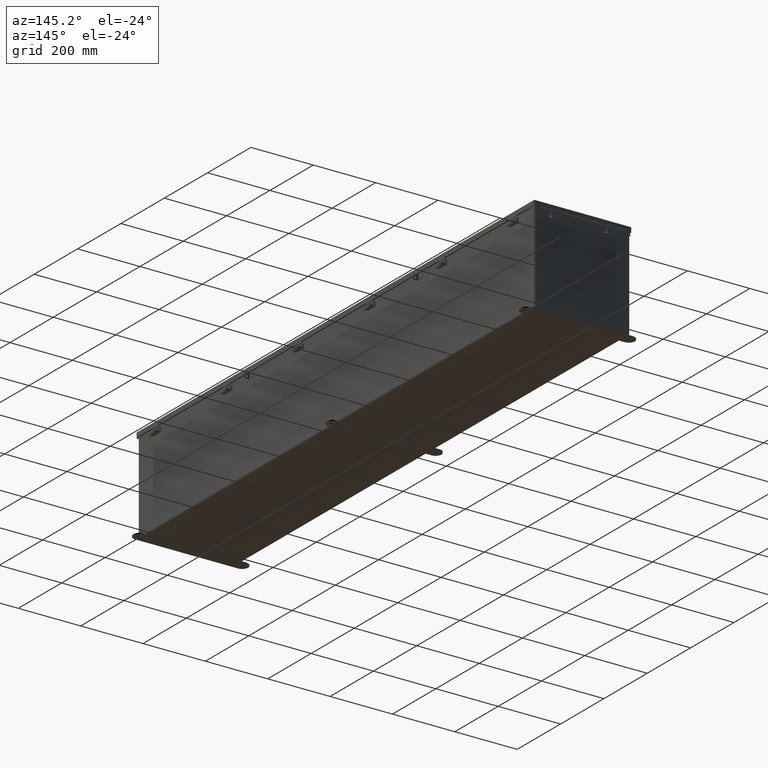
[diagram: clean part render]
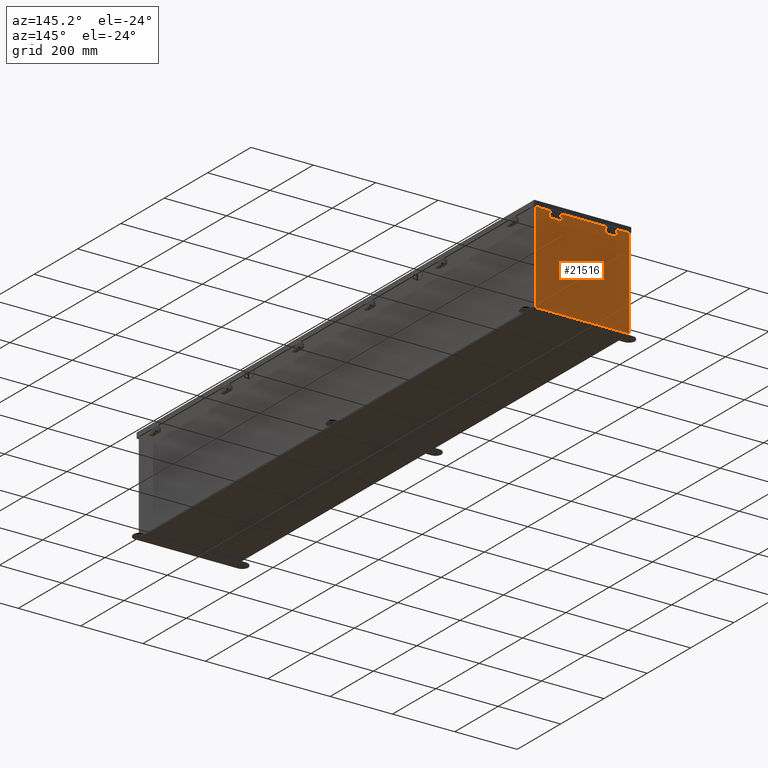
[diagram: same view with one face highlighted and labeled with its STEP entity id]
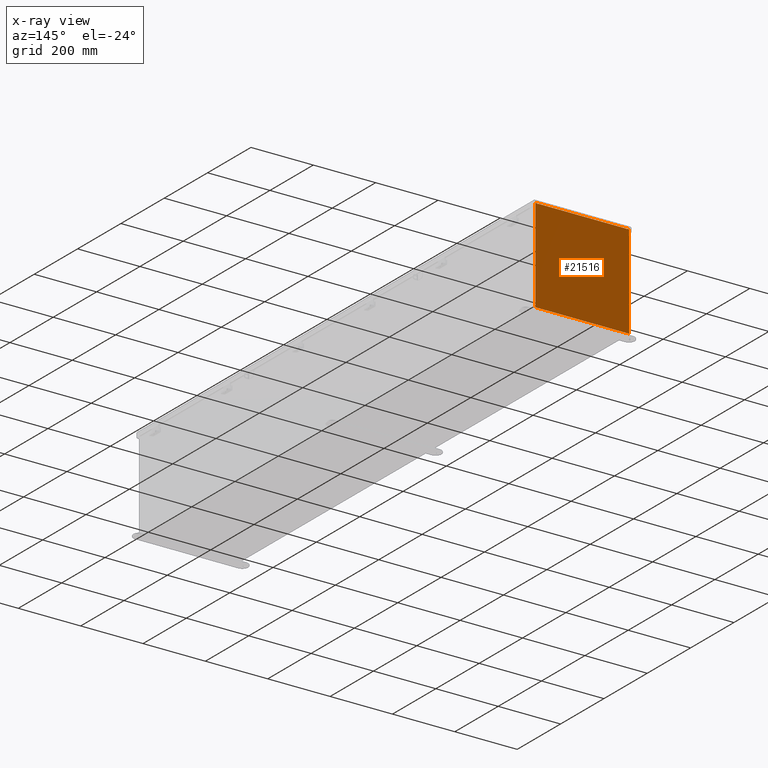
[diagram: x-ray of the same camera — body ghosted, the highlighted face saturated]
A machine part, auxiliary view. The second image highlights one B-rep face of the part: STEP entity #21516.
The next image is the same camera in x-ray: the body ghosted, the highlighted face saturated — about 0% of this face is hidden behind the body in this view.
In plain terms, the highlighted planar face has unit normal (0, -1, 0).
Its self-contained STEP definition (entity closure, byte-faithful):
#639 = LINE ( 'NONE', #34952, #48929 ) ;
#848 = CARTESIAN_POINT ( 'NONE',  ( 5.582300000000000000, 0.0000000000000000000, 5.912300000000000100 ) ) ;
#1712 = FACE_OUTER_BOUND ( 'NONE', #28198, .T. ) ;
#2410 = LINE ( 'NONE', #14999, #40269 ) ;
#3744 = DIRECTION ( 'NONE',  ( 0.0000000000000000000, 0.0000000000000000000, -1.000000000000000000 ) ) ;
#3839 = LINE ( 'NONE', #42656, #13005 ) ;
#3882 = CIRCLE ( 'NONE', #32674, 0.01867500000000058700 ) ;
#4167 = CARTESIAN_POINT ( 'NONE',  ( 5.619650000000000000, 0.0000000000000000000, 5.874950000000001000 ) ) ;
#4887 = DIRECTION ( 'NONE',  ( 1.000000000000000000, 0.0000000000000000000, -1.844192188523290300E-016 ) ) ;
#5613 = DIRECTION ( 'NONE',  ( 0.0000000000000000000, 0.0000000000000000000, 1.000000000000000000 ) ) ;
#6876 = DIRECTION ( 'NONE',  ( -0.0000000000000000000, -0.0000000000000000000, 1.000000000000000000 ) ) ;
#8224 = VERTEX_POINT ( 'NONE', #28033 ) ;
#9480 = CARTESIAN_POINT ( 'NONE',  ( -5.925300000000000000, 0.0000000000000000000, -5.925300000000001800 ) ) ;
#10132 = EDGE_CURVE ( 'NONE', #17731, #18254, #41346, .T. ) ;
#10407 = EDGE_CURVE ( 'NONE', #40214, #37899, #16279, .T. ) ;
#10435 = VECTOR ( 'NONE', #47084, 39.37007874015748100 ) ;
#10602 = PLANE ( 'NONE',  #23839 ) ;
#12796 = EDGE_CURVE ( 'NONE', #49271, #46197, #3882, .T. ) ;
#13005 = VECTOR ( 'NONE', #3744, 39.37007874015748100 ) ;
#13605 = CARTESIAN_POINT ( 'NONE',  ( 5.600975000000000000, 0.0000000000000000000, 5.874950000000001000 ) ) ;
#14398 = ORIENTED_EDGE ( 'NONE', *, *, #46879, .F. ) ;
#14999 = CARTESIAN_POINT ( 'NONE',  ( -5.582299999999999200, 0.0000000000000000000, 0.0000000000000000000 ) ) ;
#15166 = CARTESIAN_POINT ( 'NONE',  ( -5.600974999999998300, 0.0000000000000000000, 5.874950000000001000 ) ) ;
#15359 = EDGE_CURVE ( 'NONE', #8224, #25041, #48070, .T. ) ;
#16096 = CARTESIAN_POINT ( 'NONE',  ( -5.619649999999999100, 0.0000000000000000000, 5.925300000000002700 ) ) ;
#16279 = LINE ( 'NONE', #30271, #46178 ) ;
#17221 = CARTESIAN_POINT ( 'NONE',  ( 5.582300000000000000, 0.0000000000000000000, 0.0000000000000000000 ) ) ;
#17549 = DIRECTION ( 'NONE',  ( 0.0000000000000000000, 0.0000000000000000000, -1.000000000000000000 ) ) ;
#17731 = VERTEX_POINT ( 'NONE', #26675 ) ;
#18254 = VERTEX_POINT ( 'NONE', #30041 ) ;
#18315 = CARTESIAN_POINT ( 'NONE',  ( 5.582299999999999200, 0.0000000000000000000, 5.874950000000001000 ) ) ;
#18396 = EDGE_CURVE ( 'NONE', #18254, #43213, #3839, .T. ) ;
#19097 = ORIENTED_EDGE ( 'NONE', *, *, #10132, .T. ) ;
#19105 = DIRECTION ( 'NONE',  ( 0.0000000000000000000, 0.0000000000000000000, -1.000000000000000000 ) ) ;
#20159 = VECTOR ( 'NONE', #5613, 39.37007874015748100 ) ;
#20425 = ORIENTED_EDGE ( 'NONE', *, *, #46895, .F. ) ;
#20719 = VECTOR ( 'NONE', #49966, 39.37007874015748100 ) ;
#20745 = DIRECTION ( 'NONE',  ( 1.000000000000000000, 0.0000000000000000000, -1.844192188523290300E-016 ) ) ;
#21516 = ADVANCED_FACE ( 'NONE', ( #1712 ), #10602, .F. ) ;
#22369 = DIRECTION ( 'NONE',  ( 0.0000000000000000000, -0.0000000000000000000, -1.000000000000000000 ) ) ;
#22606 = CARTESIAN_POINT ( 'NONE',  ( -5.582300000000000000, 0.0000000000000000000, 5.912300000000006300 ) ) ;
#22852 = CARTESIAN_POINT ( 'NONE',  ( -5.582299999999999200, 0.0000000000000000000, 5.874950000000001000 ) ) ;
#23586 = ORIENTED_EDGE ( 'NONE', *, *, #41425, .F. ) ;
#23839 = AXIS2_PLACEMENT_3D ( 'NONE', #33790, #45735, #22369 ) ;
#25041 = VERTEX_POINT ( 'NONE', #16096 ) ;
#25592 = EDGE_CURVE ( 'NONE', #43213, #40214, #41580, .T. ) ;
#26372 = CARTESIAN_POINT ( 'NONE',  ( -5.619649999999999100, 0.0000000000000000000, 0.0000000000000000000 ) ) ;
#26675 = CARTESIAN_POINT ( 'NONE',  ( 5.619649999999999100, 0.0000000000000000000, 5.925299999999998200 ) ) ;
#26913 = CARTESIAN_POINT ( 'NONE',  ( 5.925300000000000000, 0.0000000000000000000, -5.925300000000001800 ) ) ;
#27618 = AXIS2_PLACEMENT_3D ( 'NONE', #15166, #42459, #19105 ) ;
#27623 = CARTESIAN_POINT ( 'NONE',  ( -5.925300000000000000, 0.0000000000000000000, -5.925300000000001800 ) ) ;
#28033 = CARTESIAN_POINT ( 'NONE',  ( -5.619649999999998300, 0.0000000000000000000, 5.874950000000001000 ) ) ;
#28198 = EDGE_LOOP ( 'NONE', ( #47642, #20425, #14398, #48882, #33883, #43223, #23586, #19097, #34540, #50007, #44082, #46865 ) ) ;
#28211 = VECTOR ( 'NONE', #4887, 39.37007874015748100 ) ;
#28506 = VECTOR ( 'NONE', #49796, 39.37007874015748100 ) ;
#28626 = LINE ( 'NONE', #22606, #20719 ) ;
#30041 = CARTESIAN_POINT ( 'NONE',  ( 5.925300000000000000, 0.0000000000000000000, 5.925299999999998200 ) ) ;
#30271 = CARTESIAN_POINT ( 'NONE',  ( -5.925300000000000000, 0.0000000000000000000, 5.925300000000002700 ) ) ;
#30537 = LINE ( 'NONE', #17221, #20159 ) ;
#31023 = VERTEX_POINT ( 'NONE', #22852 ) ;
#31258 = VERTEX_POINT ( 'NONE', #36618 ) ;
#32512 = CARTESIAN_POINT ( 'NONE',  ( -5.925300000000000000, 0.0000000000000000000, 5.925300000000002700 ) ) ;
#32674 = AXIS2_PLACEMENT_3D ( 'NONE', #13605, #40912, #17549 ) ;
#32805 = CARTESIAN_POINT ( 'NONE',  ( -5.925300000000000000, 0.0000000000000000000, 5.925300000000002700 ) ) ;
#33790 = CARTESIAN_POINT ( 'NONE',  ( 0.0000000000000000000, 0.0000000000000000000, 0.0000000000000000000 ) ) ;
#33883 = ORIENTED_EDGE ( 'NONE', *, *, #46645, .F. ) ;
#34540 = ORIENTED_EDGE ( 'NONE', *, *, #18396, .T. ) ;
#34952 = CARTESIAN_POINT ( 'NONE',  ( 5.619650000000000000, 0.0000000000000000000, 0.0000000000000000000 ) ) ;
#35092 = EDGE_CURVE ( 'NONE', #31258, #41221, #28626, .T. ) ;
#36105 = CARTESIAN_POINT ( 'NONE',  ( -5.925300000000000000, 0.0000000000000000000, 5.925300000000002700 ) ) ;
#36618 = CARTESIAN_POINT ( 'NONE',  ( -5.582299999999999200, 0.0000000000000000000, 5.912300000000006300 ) ) ;
#37656 = VECTOR ( 'NONE', #20745, 39.37007874015748100 ) ;
#37899 = VERTEX_POINT ( 'NONE', #32805 ) ;
#38341 = DIRECTION ( 'NONE',  ( 0.0000000000000000000, 0.0000000000000000000, -1.000000000000000000 ) ) ;
#40214 = VERTEX_POINT ( 'NONE', #9480 ) ;
#40269 = VECTOR ( 'NONE', #38341, 39.37007874015748100 ) ;
#40912 = DIRECTION ( 'NONE',  ( -0.0000000000000000000, 1.000000000000000000, -0.0000000000000000000 ) ) ;
#41221 = VERTEX_POINT ( 'NONE', #848 ) ;
#41346 = LINE ( 'NONE', #32512, #37656 ) ;
#41425 = EDGE_CURVE ( 'NONE', #17731, #49271, #639, .T. ) ;
#41580 = LINE ( 'NONE', #27623, #10435 ) ;
#42459 = DIRECTION ( 'NONE',  ( -0.0000000000000000000, 1.000000000000000000, -0.0000000000000000000 ) ) ;
#42656 = CARTESIAN_POINT ( 'NONE',  ( 5.925300000000000000, 0.0000000000000000000, 5.925299999999998200 ) ) ;
#43213 = VERTEX_POINT ( 'NONE', #26913 ) ;
#43223 = ORIENTED_EDGE ( 'NONE', *, *, #12796, .F. ) ;
#44082 = ORIENTED_EDGE ( 'NONE', *, *, #10407, .T. ) ;
#45327 = EDGE_CURVE ( 'NONE', #37899, #25041, #49010, .T. ) ;
#45735 = DIRECTION ( 'NONE',  ( 0.0000000000000000000, -1.000000000000000000, 0.0000000000000000000 ) ) ;
#46178 = VECTOR ( 'NONE', #6876, 39.37007874015748100 ) ;
#46197 = VERTEX_POINT ( 'NONE', #18315 ) ;
#46542 = DIRECTION ( 'NONE',  ( 0.0000000000000000000, 0.0000000000000000000, -1.000000000000000000 ) ) ;
#46645 = EDGE_CURVE ( 'NONE', #46197, #41221, #30537, .T. ) ;
#46865 = ORIENTED_EDGE ( 'NONE', *, *, #45327, .T. ) ;
#46879 = EDGE_CURVE ( 'NONE', #31258, #31023, #2410, .T. ) ;
#46895 = EDGE_CURVE ( 'NONE', #31023, #8224, #48222, .T. ) ;
#47084 = DIRECTION ( 'NONE',  ( -1.000000000000000000, -0.0000000000000000000, -0.0000000000000000000 ) ) ;
#47642 = ORIENTED_EDGE ( 'NONE', *, *, #15359, .F. ) ;
#48070 = LINE ( 'NONE', #26372, #28506 ) ;
#48222 = CIRCLE ( 'NONE', #27618, 0.01867500000000058700 ) ;
#48882 = ORIENTED_EDGE ( 'NONE', *, *, #35092, .T. ) ;
#48929 = VECTOR ( 'NONE', #46542, 39.37007874015748100 ) ;
#49010 = LINE ( 'NONE', #36105, #28211 ) ;
#49271 = VERTEX_POINT ( 'NONE', #4167 ) ;
#49796 = DIRECTION ( 'NONE',  ( 0.0000000000000000000, 0.0000000000000000000, 1.000000000000000000 ) ) ;
#49966 = DIRECTION ( 'NONE',  ( 1.000000000000000000, 0.0000000000000000000, 0.0000000000000000000 ) ) ;
#50007 = ORIENTED_EDGE ( 'NONE', *, *, #25592, .T. ) ;